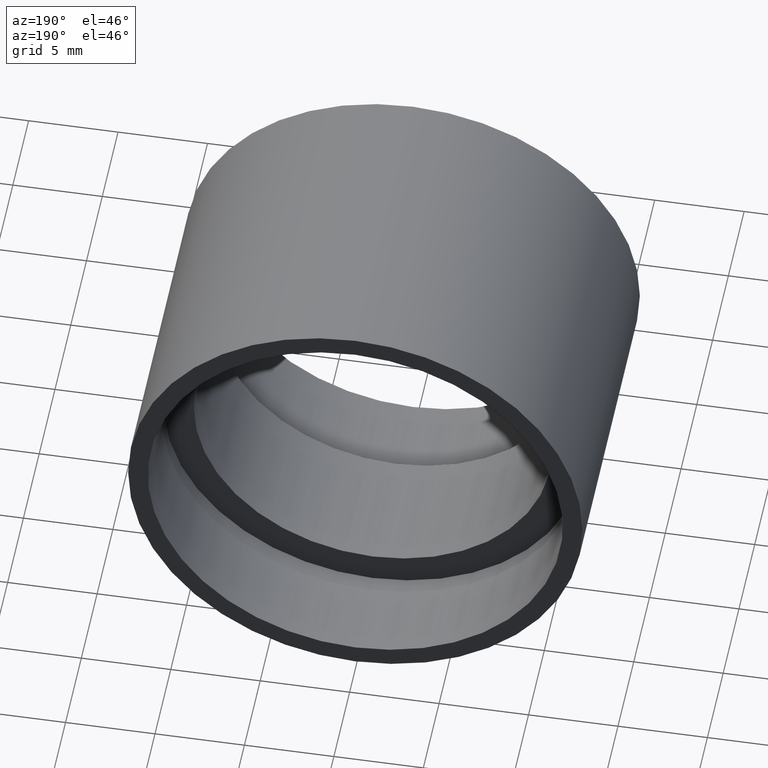
[diagram: clean part render]
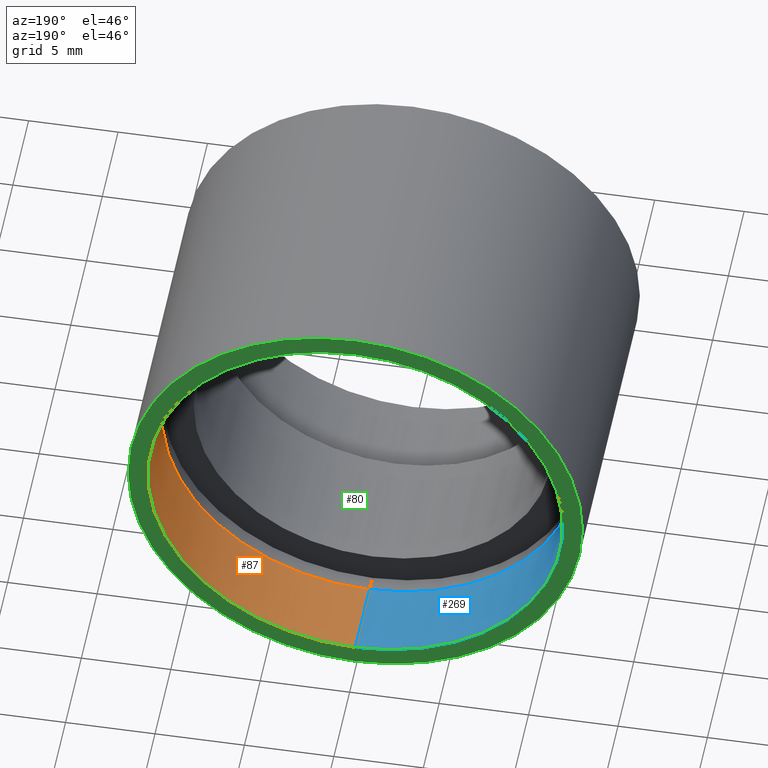
[diagram: same view with three faces highlighted in distinct colors, each labeled with its STEP entity id]
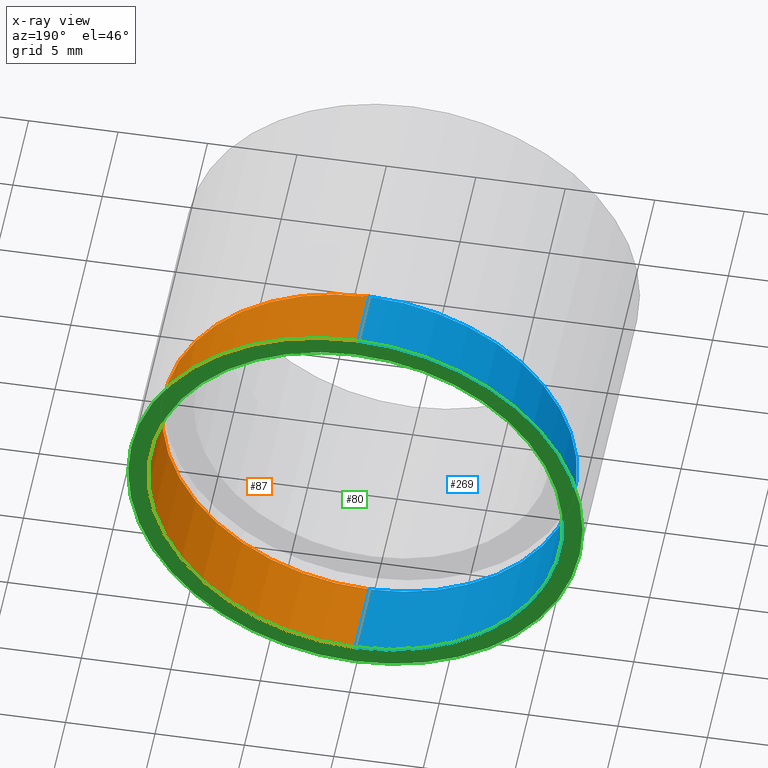
[diagram: x-ray of the same camera — body ghosted, the three highlighted faces saturated]
A machine part, auxiliary view with three faces highlighted in distinct colors.
The next image is the same camera in x-ray (body ghosted, the three faces saturated) — at least one of them is partly hidden behind the body in this view.
Their STEP definitions:

[orange] entity #87 — the highlighted cylindrical surface (partial cylindrical patch) has radius 11.6 mm, axis along (-0, 1, -0).
#24 = VERTEX_POINT ( 'NONE', #361 ) ;
#25 = VERTEX_POINT ( 'NONE', #307 ) ;
#40 = ORIENTED_EDGE ( 'NONE', *, *, #228, .F. ) ;
#41 = EDGE_CURVE ( 'NONE', #24, #328, #303, .T. ) ;
#45 = EDGE_CURVE ( 'NONE', #25, #591, #382, .T. ) ;
#67 = DIRECTION ( 'NONE',  ( 0.0000000000000000000, 0.0000000000000000000, 1.000000000000000000 ) ) ;
#71 = ORIENTED_EDGE ( 'NONE', *, *, #601, .T. ) ;
#77 = CARTESIAN_POINT ( 'NONE',  ( 0.0000000000000000000, 161.3761669434274500, 11.60000000000003300 ) ) ;
#87 = ADVANCED_FACE ( 'NONE', ( #216 ), #498, .F. ) ;
#169 = ORIENTED_EDGE ( 'NONE', *, *, #41, .T. ) ;
#177 = DIRECTION ( 'NONE',  ( 0.0000000000000000000, 0.0000000000000000000, 1.000000000000000000 ) ) ;
#193 = DIRECTION ( 'NONE',  ( -0.0000000000000000000, 1.000000000000000000, -0.0000000000000000000 ) ) ;
#216 = FACE_OUTER_BOUND ( 'NONE', #535, .T. ) ;
#228 = EDGE_CURVE ( 'NONE', #591, #328, #355, .T. ) ;
#235 = DIRECTION ( 'NONE',  ( -0.0000000000000000000, 1.000000000000000000, -0.0000000000000000000 ) ) ;
#254 = LINE ( 'NONE', #77, #445 ) ;
#272 = CARTESIAN_POINT ( 'NONE',  ( 1.420590287010933900E-015, 13.69999999999999000, -11.60000000000003300 ) ) ;
#299 = AXIS2_PLACEMENT_3D ( 'NONE', #422, #235, #473 ) ;
#303 = CIRCLE ( 'NONE', #310, 11.60000000000003200 ) ;
#307 = CARTESIAN_POINT ( 'NONE',  ( 0.0000000000000000000, 13.69999999999999000, 11.60000000000003300 ) ) ;
#310 = AXIS2_PLACEMENT_3D ( 'NONE', #550, #546, #67 ) ;
#316 = DIRECTION ( 'NONE',  ( -0.0000000000000000000, 1.000000000000000000, -0.0000000000000000000 ) ) ;
#328 = VERTEX_POINT ( 'NONE', #444 ) ;
#355 = LINE ( 'NONE', #478, #419 ) ;
#356 = ORIENTED_EDGE ( 'NONE', *, *, #45, .F. ) ;
#360 = DIRECTION ( 'NONE',  ( -0.0000000000000000000, 1.000000000000000000, -0.0000000000000000000 ) ) ;
#361 = CARTESIAN_POINT ( 'NONE',  ( 0.0000000000000000000, 18.19999999999999600, 11.60000000000003200 ) ) ;
#382 = CIRCLE ( 'NONE', #394, 11.60000000000003300 ) ;
#394 = AXIS2_PLACEMENT_3D ( 'NONE', #517, #316, #177 ) ;
#419 = VECTOR ( 'NONE', #193, 1000.000000000000000 ) ;
#422 = CARTESIAN_POINT ( 'NONE',  ( 0.0000000000000000000, 161.3761669434274500, 0.0000000000000000000 ) ) ;
#444 = CARTESIAN_POINT ( 'NONE',  ( 1.420590287010933700E-015, 18.19999999999999600, -11.60000000000003200 ) ) ;
#445 = VECTOR ( 'NONE', #360, 1000.000000000000000 ) ;
#473 = DIRECTION ( 'NONE',  ( 0.0000000000000000000, 0.0000000000000000000, 1.000000000000000000 ) ) ;
#478 = CARTESIAN_POINT ( 'NONE',  ( 1.420590287010933900E-015, 161.3761669434274500, -11.60000000000003300 ) ) ;
#498 = CYLINDRICAL_SURFACE ( 'NONE', #299, 11.60000000000003300 ) ;
#517 = CARTESIAN_POINT ( 'NONE',  ( 0.0000000000000000000, 13.69999999999999000, 0.0000000000000000000 ) ) ;
#535 = EDGE_LOOP ( 'NONE', ( #40, #356, #71, #169 ) ) ;
#546 = DIRECTION ( 'NONE',  ( -0.0000000000000000000, 1.000000000000000000, -0.0000000000000000000 ) ) ;
#550 = CARTESIAN_POINT ( 'NONE',  ( 0.0000000000000000000, 18.19999999999999600, 0.0000000000000000000 ) ) ;
#591 = VERTEX_POINT ( 'NONE', #272 ) ;
#601 = EDGE_CURVE ( 'NONE', #25, #24, #254, .T. ) ;

[blue] entity #269 — the highlighted cylindrical surface (partial cylindrical patch) has radius 11.6 mm, axis along (-0, 1, -0).
#18 = CARTESIAN_POINT ( 'NONE',  ( 0.0000000000000000000, 18.19999999999999600, 0.0000000000000000000 ) ) ;
#24 = VERTEX_POINT ( 'NONE', #361 ) ;
#25 = VERTEX_POINT ( 'NONE', #307 ) ;
#77 = CARTESIAN_POINT ( 'NONE',  ( 0.0000000000000000000, 161.3761669434274500, 11.60000000000003300 ) ) ;
#85 = EDGE_LOOP ( 'NONE', ( #189, #380, #470, #585 ) ) ;
#92 = CYLINDRICAL_SURFACE ( 'NONE', #570, 11.60000000000003300 ) ;
#95 = DIRECTION ( 'NONE',  ( -0.0000000000000000000, 1.000000000000000000, -0.0000000000000000000 ) ) ;
#109 = FACE_OUTER_BOUND ( 'NONE', #85, .T. ) ;
#145 = CARTESIAN_POINT ( 'NONE',  ( 0.0000000000000000000, 161.3761669434274500, 0.0000000000000000000 ) ) ;
#146 = AXIS2_PLACEMENT_3D ( 'NONE', #18, #164, #212 ) ;
#147 = DIRECTION ( 'NONE',  ( -0.0000000000000000000, 1.000000000000000000, -0.0000000000000000000 ) ) ;
#149 = EDGE_CURVE ( 'NONE', #591, #25, #438, .T. ) ;
#162 = AXIS2_PLACEMENT_3D ( 'NONE', #379, #147, #572 ) ;
#164 = DIRECTION ( 'NONE',  ( -0.0000000000000000000, 1.000000000000000000, -0.0000000000000000000 ) ) ;
#189 = ORIENTED_EDGE ( 'NONE', *, *, #149, .F. ) ;
#193 = DIRECTION ( 'NONE',  ( -0.0000000000000000000, 1.000000000000000000, -0.0000000000000000000 ) ) ;
#212 = DIRECTION ( 'NONE',  ( 0.0000000000000000000, 0.0000000000000000000, 1.000000000000000000 ) ) ;
#228 = EDGE_CURVE ( 'NONE', #591, #328, #355, .T. ) ;
#254 = LINE ( 'NONE', #77, #445 ) ;
#269 = ADVANCED_FACE ( 'NONE', ( #109 ), #92, .F. ) ;
#272 = CARTESIAN_POINT ( 'NONE',  ( 1.420590287010933900E-015, 13.69999999999999000, -11.60000000000003300 ) ) ;
#307 = CARTESIAN_POINT ( 'NONE',  ( 0.0000000000000000000, 13.69999999999999000, 11.60000000000003300 ) ) ;
#328 = VERTEX_POINT ( 'NONE', #444 ) ;
#355 = LINE ( 'NONE', #478, #419 ) ;
#360 = DIRECTION ( 'NONE',  ( -0.0000000000000000000, 1.000000000000000000, -0.0000000000000000000 ) ) ;
#361 = CARTESIAN_POINT ( 'NONE',  ( 0.0000000000000000000, 18.19999999999999600, 11.60000000000003200 ) ) ;
#364 = EDGE_CURVE ( 'NONE', #328, #24, #476, .T. ) ;
#379 = CARTESIAN_POINT ( 'NONE',  ( 0.0000000000000000000, 13.69999999999999000, 0.0000000000000000000 ) ) ;
#380 = ORIENTED_EDGE ( 'NONE', *, *, #228, .T. ) ;
#419 = VECTOR ( 'NONE', #193, 1000.000000000000000 ) ;
#438 = CIRCLE ( 'NONE', #162, 11.60000000000003300 ) ;
#444 = CARTESIAN_POINT ( 'NONE',  ( 1.420590287010933700E-015, 18.19999999999999600, -11.60000000000003200 ) ) ;
#445 = VECTOR ( 'NONE', #360, 1000.000000000000000 ) ;
#470 = ORIENTED_EDGE ( 'NONE', *, *, #364, .T. ) ;
#476 = CIRCLE ( 'NONE', #146, 11.60000000000003200 ) ;
#478 = CARTESIAN_POINT ( 'NONE',  ( 1.420590287010933900E-015, 161.3761669434274500, -11.60000000000003300 ) ) ;
#481 = DIRECTION ( 'NONE',  ( 0.0000000000000000000, 0.0000000000000000000, 1.000000000000000000 ) ) ;
#570 = AXIS2_PLACEMENT_3D ( 'NONE', #145, #95, #481 ) ;
#572 = DIRECTION ( 'NONE',  ( 0.0000000000000000000, 0.0000000000000000000, 1.000000000000000000 ) ) ;
#585 = ORIENTED_EDGE ( 'NONE', *, *, #601, .F. ) ;
#591 = VERTEX_POINT ( 'NONE', #272 ) ;
#601 = EDGE_CURVE ( 'NONE', #25, #24, #254, .T. ) ;

[green] entity #80 — the highlighted planar face has unit normal (0, -1, 0).
#18 = CARTESIAN_POINT ( 'NONE',  ( 0.0000000000000000000, 18.19999999999999600, 0.0000000000000000000 ) ) ;
#24 = VERTEX_POINT ( 'NONE', #361 ) ;
#27 = AXIS2_PLACEMENT_3D ( 'NONE', #432, #246, #330 ) ;
#41 = EDGE_CURVE ( 'NONE', #24, #328, #303, .T. ) ;
#65 = ORIENTED_EDGE ( 'NONE', *, *, #364, .F. ) ;
#67 = DIRECTION ( 'NONE',  ( 0.0000000000000000000, 0.0000000000000000000, 1.000000000000000000 ) ) ;
#72 = DIRECTION ( 'NONE',  ( 0.0000000000000000000, -1.000000000000000000, 0.0000000000000000000 ) ) ;
#80 = ADVANCED_FACE ( 'NONE', ( #160, #556 ), #617, .F. ) ;
#88 = CARTESIAN_POINT ( 'NONE',  ( 0.0000000000000000000, 18.19999999999996700, 12.70000000000001900 ) ) ;
#117 = ORIENTED_EDGE ( 'NONE', *, *, #41, .F. ) ;
#146 = AXIS2_PLACEMENT_3D ( 'NONE', #18, #164, #212 ) ;
#160 = FACE_BOUND ( 'NONE', #403, .T. ) ;
#164 = DIRECTION ( 'NONE',  ( -0.0000000000000000000, 1.000000000000000000, -0.0000000000000000000 ) ) ;
#197 = ORIENTED_EDGE ( 'NONE', *, *, #319, .T. ) ;
#199 = DIRECTION ( 'NONE',  ( -0.0000000000000000000, 1.000000000000000000, -0.0000000000000000000 ) ) ;
#212 = DIRECTION ( 'NONE',  ( 0.0000000000000000000, 0.0000000000000000000, 1.000000000000000000 ) ) ;
#218 = EDGE_CURVE ( 'NONE', #529, #577, #349, .T. ) ;
#246 = DIRECTION ( 'NONE',  ( -0.0000000000000000000, 1.000000000000000000, -0.0000000000000000000 ) ) ;
#303 = CIRCLE ( 'NONE', #310, 11.60000000000003200 ) ;
#310 = AXIS2_PLACEMENT_3D ( 'NONE', #550, #546, #67 ) ;
#319 = EDGE_CURVE ( 'NONE', #577, #529, #510, .T. ) ;
#328 = VERTEX_POINT ( 'NONE', #444 ) ;
#330 = DIRECTION ( 'NONE',  ( 0.0000000000000000000, 0.0000000000000000000, 1.000000000000000000 ) ) ;
#349 = CIRCLE ( 'NONE', #27, 12.70000000000001900 ) ;
#353 = CARTESIAN_POINT ( 'NONE',  ( 1.555301434917140800E-015, 18.19999999999996700, -12.70000000000001900 ) ) ;
#361 = CARTESIAN_POINT ( 'NONE',  ( 0.0000000000000000000, 18.19999999999999600, 11.60000000000003200 ) ) ;
#364 = EDGE_CURVE ( 'NONE', #328, #24, #476, .T. ) ;
#373 = CARTESIAN_POINT ( 'NONE',  ( 11.60000000000003200, 18.19999999999998200, 0.0000000000000000000 ) ) ;
#403 = EDGE_LOOP ( 'NONE', ( #117, #65 ) ) ;
#404 = ORIENTED_EDGE ( 'NONE', *, *, #218, .T. ) ;
#415 = AXIS2_PLACEMENT_3D ( 'NONE', #373, #72, #515 ) ;
#432 = CARTESIAN_POINT ( 'NONE',  ( 0.0000000000000000000, 18.19999999999996700, 0.0000000000000000000 ) ) ;
#444 = CARTESIAN_POINT ( 'NONE',  ( 1.420590287010933700E-015, 18.19999999999999600, -11.60000000000003200 ) ) ;
#476 = CIRCLE ( 'NONE', #146, 11.60000000000003200 ) ;
#485 = CARTESIAN_POINT ( 'NONE',  ( 0.0000000000000000000, 18.19999999999996700, 0.0000000000000000000 ) ) ;
#510 = CIRCLE ( 'NONE', #545, 12.70000000000001900 ) ;
#515 = DIRECTION ( 'NONE',  ( 0.0000000000000000000, -0.0000000000000000000, -1.000000000000000000 ) ) ;
#529 = VERTEX_POINT ( 'NONE', #353 ) ;
#531 = DIRECTION ( 'NONE',  ( 0.0000000000000000000, 0.0000000000000000000, 1.000000000000000000 ) ) ;
#545 = AXIS2_PLACEMENT_3D ( 'NONE', #485, #199, #531 ) ;
#546 = DIRECTION ( 'NONE',  ( -0.0000000000000000000, 1.000000000000000000, -0.0000000000000000000 ) ) ;
#550 = CARTESIAN_POINT ( 'NONE',  ( 0.0000000000000000000, 18.19999999999999600, 0.0000000000000000000 ) ) ;
#556 = FACE_OUTER_BOUND ( 'NONE', #583, .T. ) ;
#577 = VERTEX_POINT ( 'NONE', #88 ) ;
#583 = EDGE_LOOP ( 'NONE', ( #197, #404 ) ) ;
#617 = PLANE ( 'NONE',  #415 ) ;